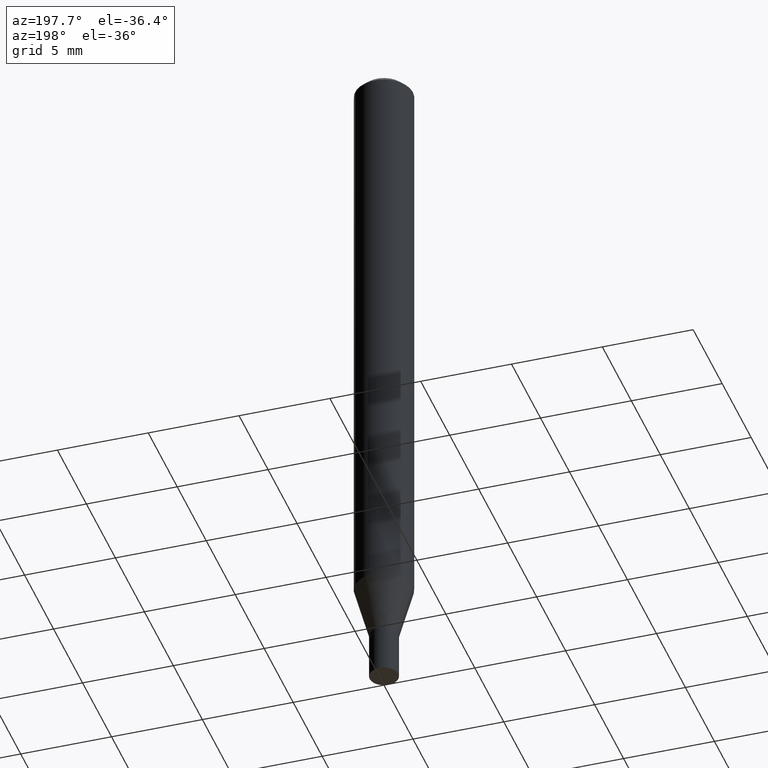
[diagram: clean part render]
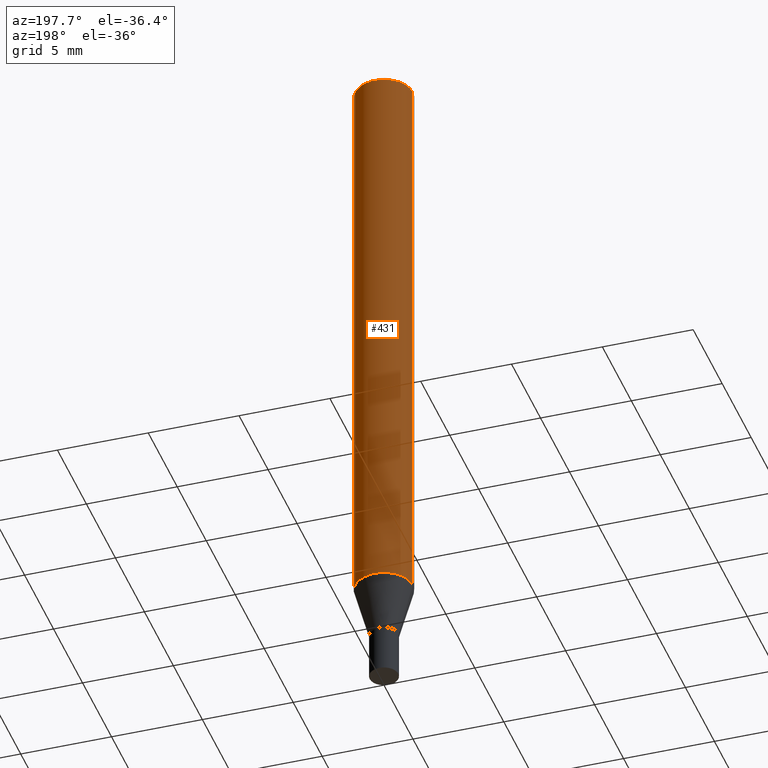
[diagram: same view with one face highlighted and labeled with its STEP entity id]
A machine part, auxiliary view. The second image highlights one B-rep face of the part: STEP entity #431.
In plain terms, the highlighted cylindrical surface (edge-blend (fillet) strip) has radius 1.5875 mm, axis along (-0, 0, 1).
Its self-contained STEP definition (entity closure, byte-faithful):
#2 = ORIENTED_EDGE ( 'NONE', *, *, #118, .F. ) ;
#5 = ORIENTED_EDGE ( 'NONE', *, *, #41, .F. ) ;
#14 = EDGE_CURVE ( 'NONE', #302, #401, #155, .T. ) ;
#41 = EDGE_CURVE ( 'NONE', #107, #369, #53, .T. ) ;
#53 = CIRCLE ( 'NONE', #240, 0.06250000000000000000 ) ;
#87 = LINE ( 'NONE', #131, #380 ) ;
#96 = DIRECTION ( 'NONE',  ( -2.445468806185136597E-29, 3.491481338843145583E-15, 1.000000000000000000 ) ) ;
#107 = VERTEX_POINT ( 'NONE', #221 ) ;
#111 = DIRECTION ( 'NONE',  ( -2.445468806185136597E-29, 3.491481338843145583E-15, 1.000000000000000000 ) ) ;
#118 = EDGE_CURVE ( 'NONE', #302, #107, #260, .T. ) ;
#128 = DIRECTION ( 'NONE',  ( -2.445468806185136877E-29, 3.491481338843145188E-15, 1.000000000000000000 ) ) ;
#131 = CARTESIAN_POINT ( 'NONE',  ( -0.06250000000000000000, 4.440892098500626162E-16, -3.074334431409316114E-30 ) ) ;
#132 = DIRECTION ( 'NONE',  ( -2.445468806185136877E-29, 3.491481338843145188E-15, 1.000000000000000000 ) ) ;
#152 = CARTESIAN_POINT ( 'NONE',  ( 3.668203209277705088E-31, -5.237222008264718399E-17, -0.01499999999999999944 ) ) ;
#155 = CIRCLE ( 'NONE', #322, 0.06250000000000000000 ) ;
#159 = EDGE_LOOP ( 'NONE', ( #215, #395, #5, #2 ) ) ;
#180 = CARTESIAN_POINT ( 'NONE',  ( 0.06250000000000000000, -4.364351673553916694E-16, 3.047610484872459871E-30 ) ) ;
#206 = DIRECTION ( 'NONE',  ( 1.000000000000000000, -6.982962677686266711E-15, 4.876176775795935793E-29 ) ) ;
#209 = DIRECTION ( 'NONE',  ( -2.445468806185136597E-29, 3.491481338843145583E-15, 1.000000000000000000 ) ) ;
#210 = CARTESIAN_POINT ( 'NONE',  ( -0.06250000000000000000, -1.815668039806898817E-15, -0.01499999999999999944 ) ) ;
#213 = CYLINDRICAL_SURFACE ( 'NONE', #412, 0.06250000000000000000 ) ;
#215 = ORIENTED_EDGE ( 'NONE', *, *, #14, .T. ) ;
#221 = CARTESIAN_POINT ( 'NONE',  ( 0.06250000000000000000, -4.888073874380388472E-16, -0.01499999999999999944 ) ) ;
#225 = FACE_OUTER_BOUND ( 'NONE', #159, .T. ) ;
#240 = AXIS2_PLACEMENT_3D ( 'NONE', #152, #209, #464 ) ;
#257 = EDGE_CURVE ( 'NONE', #401, #369, #87, .T. ) ;
#260 = LINE ( 'NONE', #180, #281 ) ;
#281 = VECTOR ( 'NONE', #132, 39.37007874015748143 ) ;
#302 = VERTEX_POINT ( 'NONE', #350 ) ;
#322 = AXIS2_PLACEMENT_3D ( 'NONE', #346, #111, #379 ) ;
#346 = CARTESIAN_POINT ( 'NONE',  ( 3.128831586500892254E-29, -4.467142279231276182E-15, -1.279440399561580399 ) ) ;
#350 = CARTESIAN_POINT ( 'NONE',  ( 0.06250000000000000000, -4.903577446586667063E-15, -1.279440399561580399 ) ) ;
#369 = VERTEX_POINT ( 'NONE', #210 ) ;
#379 = DIRECTION ( 'NONE',  ( 1.000000000000000000, -6.982962677686262766E-15, 0.000000000000000000 ) ) ;
#380 = VECTOR ( 'NONE', #128, 39.37007874015748143 ) ;
#391 = CARTESIAN_POINT ( 'NONE',  ( -0.06250000000000000000, -4.023053069381213566E-15, -1.279440399561580399 ) ) ;
#395 = ORIENTED_EDGE ( 'NONE', *, *, #257, .T. ) ;
#401 = VERTEX_POINT ( 'NONE', #391 ) ;
#403 = CARTESIAN_POINT ( 'NONE',  ( 0.000000000000000000, 0.000000000000000000, 0.000000000000000000 ) ) ;
#412 = AXIS2_PLACEMENT_3D ( 'NONE', #403, #96, #206 ) ;
#431 = ADVANCED_FACE ( 'NONE', ( #225 ), #213, .T. ) ;
#464 = DIRECTION ( 'NONE',  ( 1.000000000000000000, -6.982962677686266711E-15, 0.000000000000000000 ) ) ;